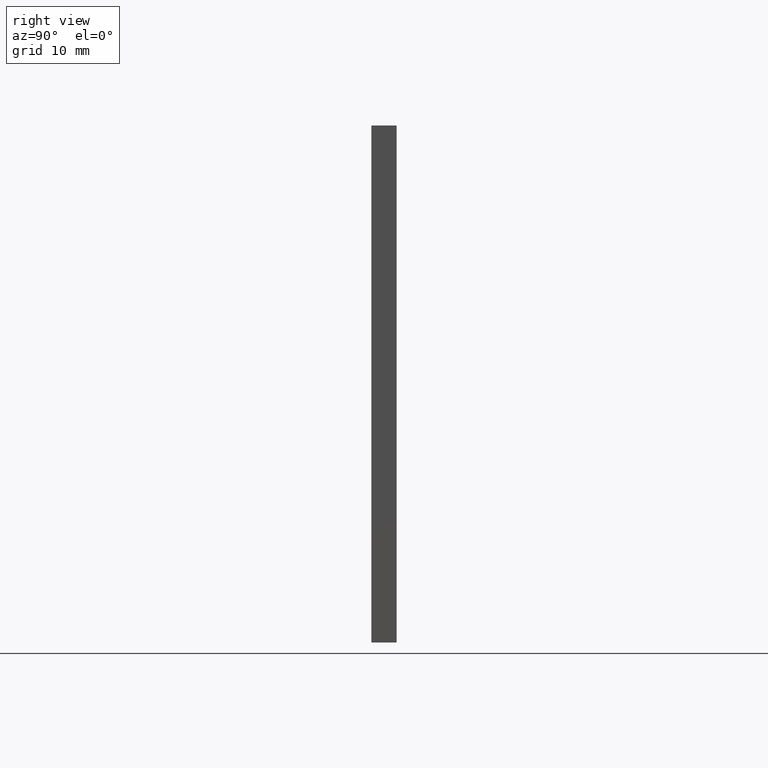
[diagram: clean part render]
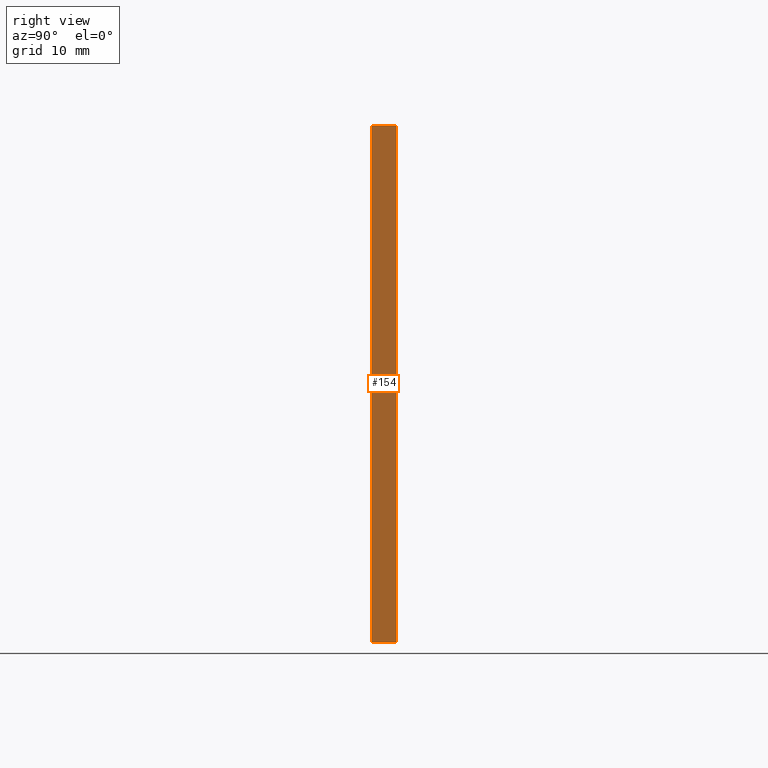
[diagram: same view with one face highlighted and labeled with its STEP entity id]
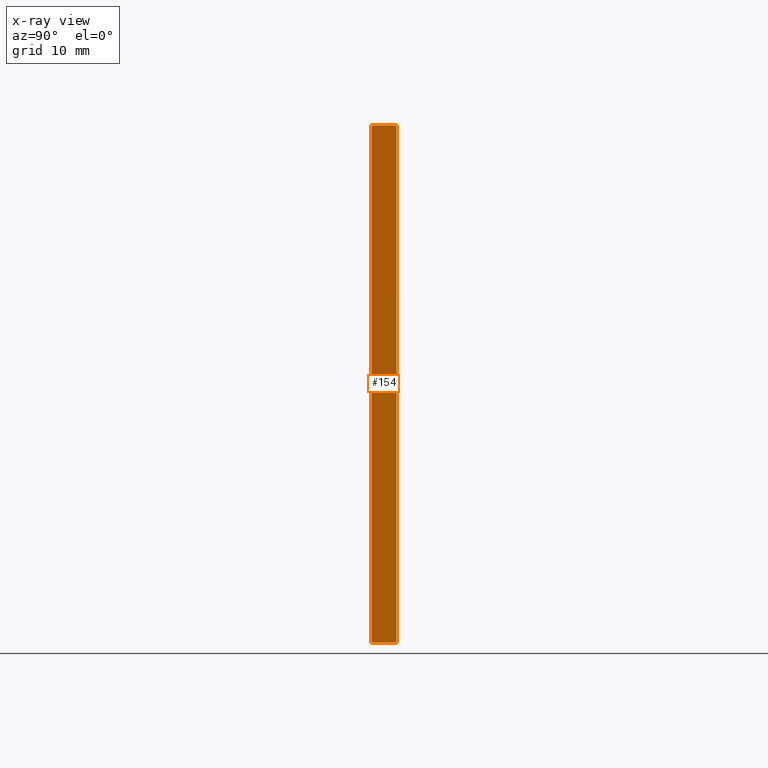
[diagram: x-ray of the same camera — body ghosted, the highlighted face saturated]
A machine part, right view. The second image highlights one B-rep face of the part: STEP entity #154.
The next image is the same camera in x-ray: the body ghosted, the highlighted face saturated — about 0% of this face is hidden behind the body in this view.
In plain terms, the highlighted planar face has unit normal (-1, 0, 0).
Its self-contained STEP definition (entity closure, byte-faithful):
#7 = VECTOR ( 'NONE', #28, 1000.000000000000000 ) ;
#14 = CARTESIAN_POINT ( 'NONE',  ( 25.00000000000000000, 2.439999999999999900, -25.00000000000000000 ) ) ;
#17 = DIRECTION ( 'NONE',  ( -0.0000000000000000000, -1.000000000000000000, -0.0000000000000000000 ) ) ;
#22 = FACE_OUTER_BOUND ( 'NONE', #79, .T. ) ;
#23 = VERTEX_POINT ( 'NONE', #180 ) ;
#28 = DIRECTION ( 'NONE',  ( 0.0000000000000000000, 0.0000000000000000000, -1.000000000000000000 ) ) ;
#30 = DIRECTION ( 'NONE',  ( -1.000000000000000000, 0.0000000000000000000, 0.0000000000000000000 ) ) ;
#32 = DIRECTION ( 'NONE',  ( 0.0000000000000000000, 0.0000000000000000000, 1.000000000000000000 ) ) ;
#35 = EDGE_CURVE ( 'NONE', #47, #62, #109, .T. ) ;
#40 = DIRECTION ( 'NONE',  ( 0.0000000000000000000, 0.0000000000000000000, -1.000000000000000000 ) ) ;
#45 = VECTOR ( 'NONE', #40, 1000.000000000000000 ) ;
#46 = CARTESIAN_POINT ( 'NONE',  ( 25.00000000000000000, 0.0000000000000000000, 25.00000000000000000 ) ) ;
#47 = VERTEX_POINT ( 'NONE', #76 ) ;
#59 = VECTOR ( 'NONE', #161, 1000.000000000000000 ) ;
#62 = VERTEX_POINT ( 'NONE', #46 ) ;
#63 = EDGE_CURVE ( 'NONE', #47, #74, #167, .T. ) ;
#66 = CARTESIAN_POINT ( 'NONE',  ( 25.00000000000000000, 0.0000000000000000000, 25.00000000000000000 ) ) ;
#73 = EDGE_CURVE ( 'NONE', #62, #23, #168, .T. ) ;
#74 = VERTEX_POINT ( 'NONE', #118 ) ;
#76 = CARTESIAN_POINT ( 'NONE',  ( 25.00000000000000000, 2.439999999999999900, 25.00000000000000000 ) ) ;
#79 = EDGE_LOOP ( 'NONE', ( #171, #163, #110, #201 ) ) ;
#81 = EDGE_CURVE ( 'NONE', #74, #23, #127, .T. ) ;
#89 = CARTESIAN_POINT ( 'NONE',  ( 25.00000000000000000, 2.439999999999999900, 25.00000000000000000 ) ) ;
#109 = LINE ( 'NONE', #89, #59 ) ;
#110 = ORIENTED_EDGE ( 'NONE', *, *, #63, .F. ) ;
#118 = CARTESIAN_POINT ( 'NONE',  ( 25.00000000000000000, 2.439999999999999900, -25.00000000000000000 ) ) ;
#127 = LINE ( 'NONE', #14, #140 ) ;
#140 = VECTOR ( 'NONE', #17, 1000.000000000000000 ) ;
#150 = CARTESIAN_POINT ( 'NONE',  ( 25.00000000000000000, 2.439999999999999900, 25.00000000000000000 ) ) ;
#154 = ADVANCED_FACE ( 'NONE', ( #22 ), #193, .F. ) ;
#161 = DIRECTION ( 'NONE',  ( -0.0000000000000000000, -1.000000000000000000, -0.0000000000000000000 ) ) ;
#163 = ORIENTED_EDGE ( 'NONE', *, *, #81, .F. ) ;
#167 = LINE ( 'NONE', #150, #45 ) ;
#168 = LINE ( 'NONE', #66, #7 ) ;
#171 = ORIENTED_EDGE ( 'NONE', *, *, #73, .T. ) ;
#173 = AXIS2_PLACEMENT_3D ( 'NONE', #179, #30, #32 ) ;
#179 = CARTESIAN_POINT ( 'NONE',  ( 25.00000000000000000, 2.439999999999999900, 25.00000000000000000 ) ) ;
#180 = CARTESIAN_POINT ( 'NONE',  ( 25.00000000000000000, 0.0000000000000000000, -25.00000000000000000 ) ) ;
#193 = PLANE ( 'NONE',  #173 ) ;
#201 = ORIENTED_EDGE ( 'NONE', *, *, #35, .T. ) ;